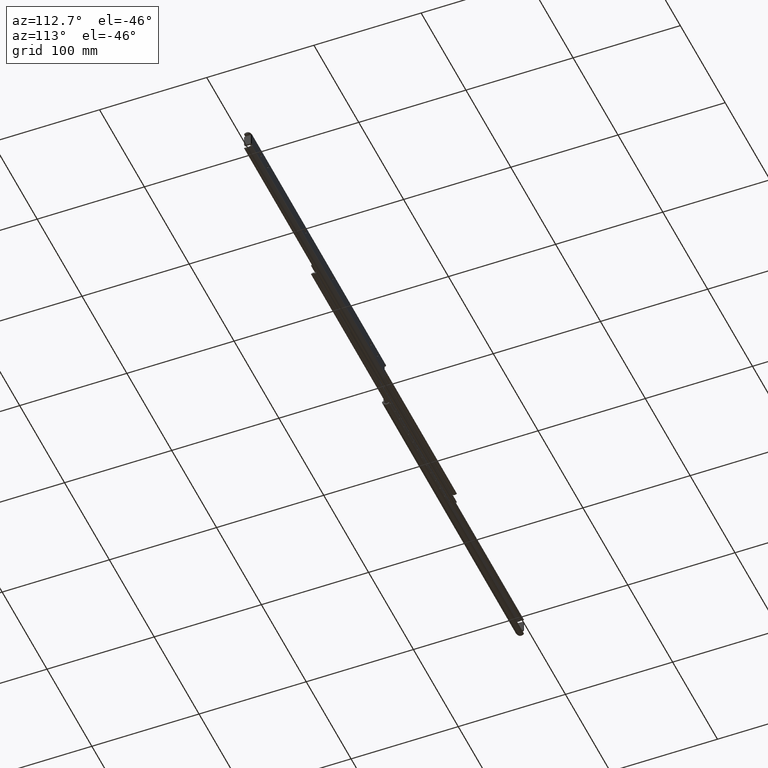
[diagram: clean part render]
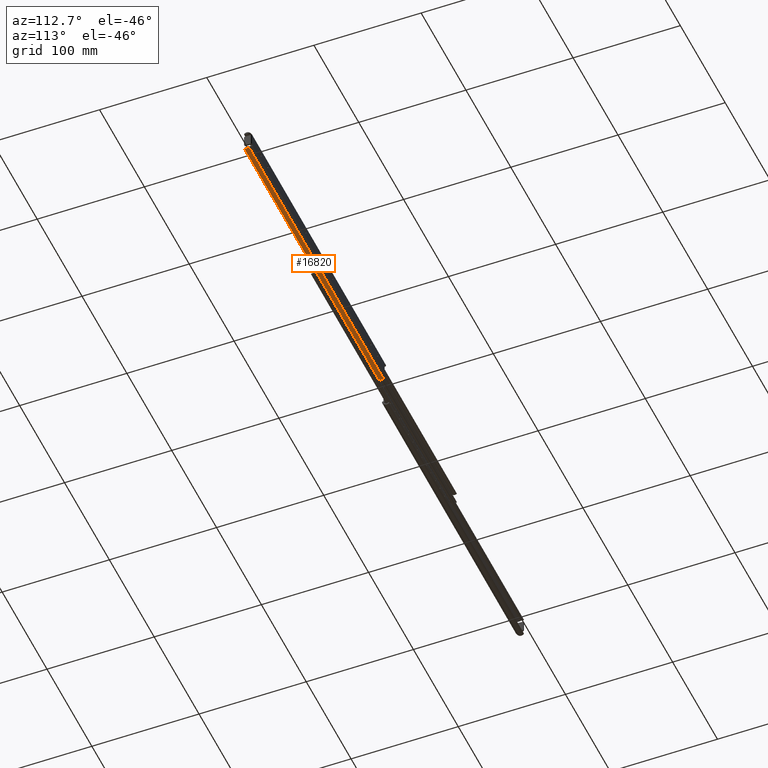
[diagram: same view with one face highlighted and labeled with its STEP entity id]
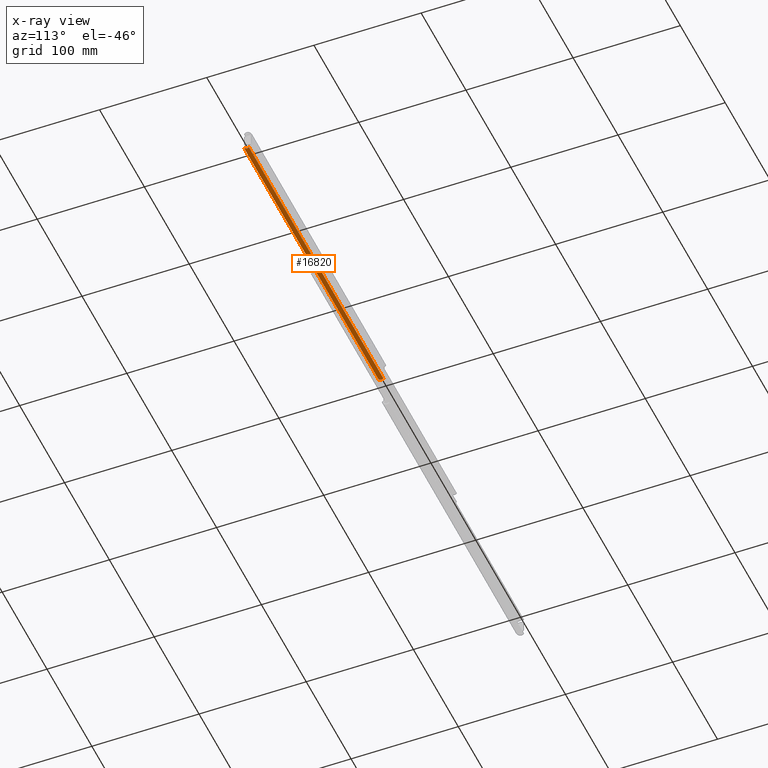
[diagram: x-ray of the same camera — body ghosted, the highlighted face saturated]
A machine part, auxiliary view. The second image highlights one B-rep face of the part: STEP entity #16820.
The next image is the same camera in x-ray: the body ghosted, the highlighted face saturated — about 0% of this face is hidden behind the body in this view.
In plain terms, the highlighted face is a freeform B-spline surface patch.
Its self-contained STEP definition (entity closure, byte-faithful):
#15435=CARTESIAN_POINT('',(299.978470043576520,-7.078071239486540,-8.522037986979019));
#15436=VERTEX_POINT('',#15435);
#15450=CARTESIAN_POINT('',(300.0,-6.945557355833240,-8.728427000000369));
#15451=VERTEX_POINT('',#15450);
#15452=CARTESIAN_POINT('',(299.978470043576520,-7.078071239486540,-8.522037986979019));
#15453=CARTESIAN_POINT('',(299.993242560200490,-7.037063546983016,-8.592073159033632));
#15454=CARTESIAN_POINT('',(300.0,-6.992917199756282,-8.660929248244624));
#15455=CARTESIAN_POINT('',(300.0,-6.945557355833560,-8.728427000000000));
#15456=QUASI_UNIFORM_CURVE('',3,(#15452,#15453,#15454,#15455),.UNSPECIFIED.,.F.,.U.);
#15457=EDGE_CURVE('',#15436,#15451,#15456,.T.);
#15631=CARTESIAN_POINT('',(0.0,-2.466980000000175,-9.201561000000000));
#15632=VERTEX_POINT('',#15631);
#15638=CARTESIAN_POINT('',(0.0,-7.078071239486619,-8.522037986978919));
#15639=VERTEX_POINT('',#15638);
#15640=CARTESIAN_POINT('',(0.0,-7.078071239486623,-8.522037986978919));
#15641=CARTESIAN_POINT('',(0.0,-6.353743143967781,-9.759084982229698));
#15642=CARTESIAN_POINT('',(0.0,-4.935554901319296,-9.968079161169062));
#15643=CARTESIAN_POINT('',(0.0,-3.517366658670809,-10.177073340108425));
#15644=CARTESIAN_POINT('',(0.0,-2.466980000000175,-9.201561000000000));
#15652=(BOUNDED_CURVE()B_SPLINE_CURVE(2,(#15640,#15641,#15642,#15643,#15644),.UNSPECIFIED.,.F.,.U.)B_SPLINE_CURVE_WITH_KNOTS((3,2,3),(0.0,0.500000000000000,1.0),.UNSPECIFIED.)CURVE()GEOMETRIC_REPRESENTATION_ITEM()RATIONAL_B_SPLINE_CURVE((1.0,0.901581331480265,1.0,0.901581331480265,1.0))REPRESENTATION_ITEM(''));
#15653=EDGE_CURVE('',#15639,#15632,#15652,.T.);
#16350=CARTESIAN_POINT('',(300.0,-2.466979999999921,-9.201561000000101));
#16351=VERTEX_POINT('',#16350);
#16352=CARTESIAN_POINT('',(300.0,-6.945557355833241,-8.728427000000368));
#16353=CARTESIAN_POINT('',(300.0,-6.165119425343176,-9.840715414181712));
#16354=CARTESIAN_POINT('',(300.0,-4.813864144514471,-9.983467106648741));
#16355=CARTESIAN_POINT('',(300.0,-3.462608863685765,-10.126218799115769));
#16356=CARTESIAN_POINT('',(300.0,-2.466979999999921,-9.201561000000101));
#16364=(BOUNDED_CURVE()B_SPLINE_CURVE(2,(#16352,#16353,#16354,#16355,#16356),.UNSPECIFIED.,.F.,.U.)B_SPLINE_CURVE_WITH_KNOTS((3,2,3),(0.0,0.500000000000000,1.0),.UNSPECIFIED.)CURVE()GEOMETRIC_REPRESENTATION_ITEM()RATIONAL_B_SPLINE_CURVE((1.0,0.910272306830964,1.0,0.910272306830964,1.0))REPRESENTATION_ITEM(''));
#16365=EDGE_CURVE('',#15451,#16351,#16364,.T.);
#16545=CARTESIAN_POINT('',(299.978470043576520,-7.078071239486540,-8.522037986979019));
#16546=CARTESIAN_POINT('',(0.0,-7.078071239486619,-8.522037986978919));
#16547=QUASI_UNIFORM_CURVE('',1,(#16545,#16546),.UNSPECIFIED.,.F.,.U.);
#16548=EDGE_CURVE('',#15436,#15639,#16547,.T.);
#16562=CARTESIAN_POINT('',(300.0,-2.466979999999921,-9.201561000000101));
#16563=CARTESIAN_POINT('',(0.0,-2.466980000000175,-9.201561000000000));
#16564=QUASI_UNIFORM_CURVE('',1,(#16562,#16563),.UNSPECIFIED.,.F.,.U.);
#16565=EDGE_CURVE('',#16351,#15632,#16564,.T.);
#16799=CARTESIAN_POINT('',(307.500000000000110,-7.141462609117079,-8.408147353251051));
#16800=CARTESIAN_POINT('',(-7.687500000000000,-7.141462609117079,-8.408147353251051));
#16801=CARTESIAN_POINT('',(307.500000000000000,-5.220518824749028,-12.043808732040411));
#16802=CARTESIAN_POINT('',(-7.687500000000000,-5.220518824749028,-12.043808732040411));
#16803=CARTESIAN_POINT('',(307.500000000000110,-2.356403654017433,-9.093401476641938));
#16804=CARTESIAN_POINT('',(-7.687500000000000,-2.356403654017433,-9.093401476641938));
#16812=(BOUNDED_SURFACE()B_SPLINE_SURFACE(1,2,((#16799,#16801,#16803),(#16800,#16802,#16804)),.UNSPECIFIED.,.F.,.F.,.U.)B_SPLINE_SURFACE_WITH_KNOTS((2,2),(3,3),(0.0,315.187500000000110),(0.0,6.088829121458419),.UNSPECIFIED.)GEOMETRIC_REPRESENTATION_ITEM()RATIONAL_B_SPLINE_SURFACE(((1.0,0.587785252292473,1.0),(1.0,0.587785252292473,1.0)))REPRESENTATION_ITEM('')SURFACE());
#16813=ORIENTED_EDGE('',*,*,#15457,.F.);
#16814=ORIENTED_EDGE('',*,*,#16548,.T.);
#16815=ORIENTED_EDGE('',*,*,#15653,.T.);
#16816=ORIENTED_EDGE('',*,*,#16565,.F.);
#16817=ORIENTED_EDGE('',*,*,#16365,.F.);
#16818=EDGE_LOOP('',(#16813,#16814,#16815,#16816,#16817));
#16819=FACE_OUTER_BOUND('',#16818,.T.);
#16820=ADVANCED_FACE('',(#16819),#16812,.T.);